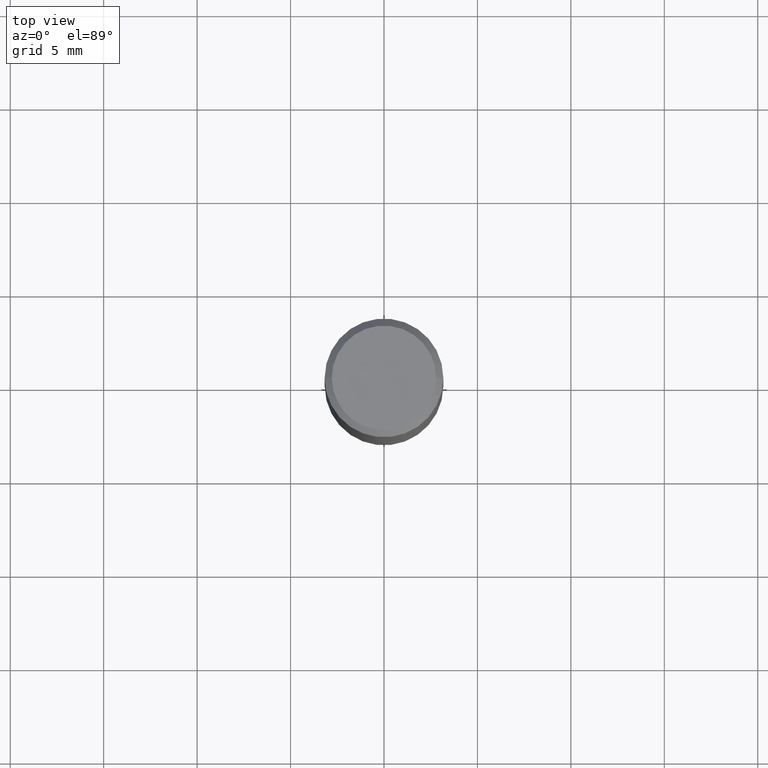
[diagram: clean part render]
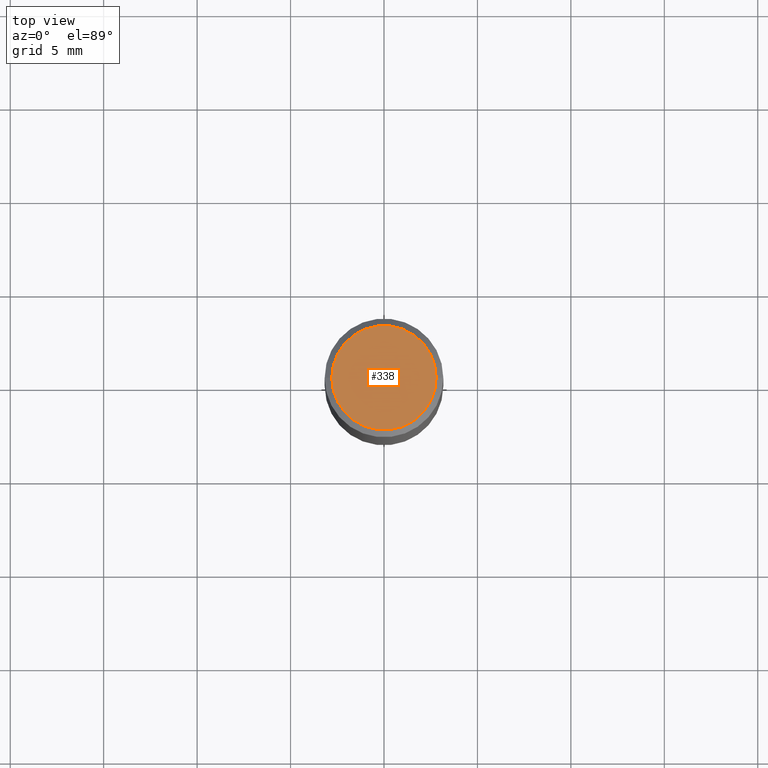
[diagram: same view with one face highlighted and labeled with its STEP entity id]
A machine part, top view. The second image highlights one B-rep face of the part: STEP entity #338.
In plain terms, the highlighted planar face has unit normal (0, -0, -1).
Its self-contained STEP definition (entity closure, byte-faithful):
#24 = DIRECTION ( 'NONE',  ( 1.000000000000000000, -6.982962677686266711E-15, 4.880309236314112093E-29 ) ) ;
#42 = AXIS2_PLACEMENT_3D ( 'NONE', #54, #326, #24 ) ;
#54 = CARTESIAN_POINT ( 'NONE',  ( -2.818101529822314113E-45, 4.023502110292317032E-31, 1.152376805091402685E-16 ) ) ;
#63 = EDGE_LOOP ( 'NONE', ( #110, #98 ) ) ;
#72 = CIRCLE ( 'NONE', #90, 0.1100000000000000006 ) ;
#90 = AXIS2_PLACEMENT_3D ( 'NONE', #391, #437, #179 ) ;
#98 = ORIENTED_EDGE ( 'NONE', *, *, #448, .T. ) ;
#110 = ORIENTED_EDGE ( 'NONE', *, *, #255, .T. ) ;
#153 = AXIS2_PLACEMENT_3D ( 'NONE', #427, #462, #292 ) ;
#176 = VERTEX_POINT ( 'NONE', #220 ) ;
#179 = DIRECTION ( 'NONE',  ( 1.000000000000000000, -6.982962677686266711E-15, 4.880309236314112093E-29 ) ) ;
#220 = CARTESIAN_POINT ( 'NONE',  ( -0.1100000000000000006, 7.943120045868129172E-16, 1.152376805091348205E-16 ) ) ;
#245 = PLANE ( 'NONE',  #153 ) ;
#252 = CARTESIAN_POINT ( 'NONE',  ( 0.1100000000000000006, -8.322946247794783877E-16, 1.152376805091458645E-16 ) ) ;
#255 = EDGE_CURVE ( 'NONE', #176, #446, #72, .T. ) ;
#292 = DIRECTION ( 'NONE',  ( -1.000000000000000000, 6.982962677686265922E-15, -4.876176775795935793E-29 ) ) ;
#326 = DIRECTION ( 'NONE',  ( -2.445468806185136597E-29, 3.491481338843145583E-15, 1.000000000000000000 ) ) ;
#330 = FACE_OUTER_BOUND ( 'NONE', #63, .T. ) ;
#338 = ADVANCED_FACE ( 'NONE', ( #330 ), #245, .F. ) ;
#376 = CIRCLE ( 'NONE', #42, 0.1100000000000000006 ) ;
#391 = CARTESIAN_POINT ( 'NONE',  ( -2.818101529822314113E-45, 4.023502110292317032E-31, 1.152376805091402685E-16 ) ) ;
#427 = CARTESIAN_POINT ( 'NONE',  ( 7.681258945454893776E-16, 0.1100000000000000006, -3.264441070181759227E-16 ) ) ;
#437 = DIRECTION ( 'NONE',  ( -2.445468806185136597E-29, 3.491481338843145583E-15, 1.000000000000000000 ) ) ;
#446 = VERTEX_POINT ( 'NONE', #252 ) ;
#448 = EDGE_CURVE ( 'NONE', #446, #176, #376, .T. ) ;
#462 = DIRECTION ( 'NONE',  ( 2.438088387897960049E-29, -3.491481338843145188E-15, -1.000000000000000000 ) ) ;